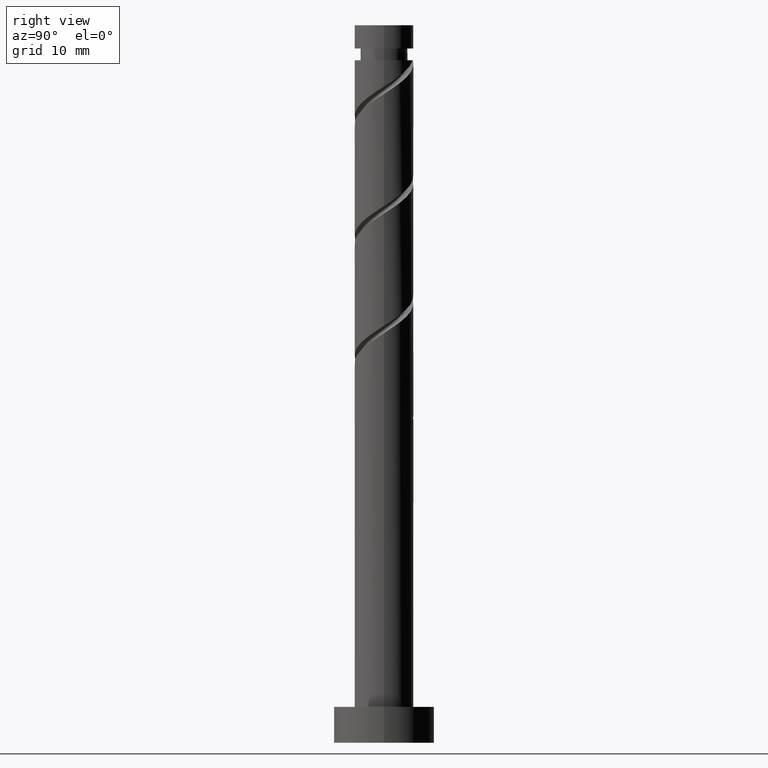
[diagram: clean part render]
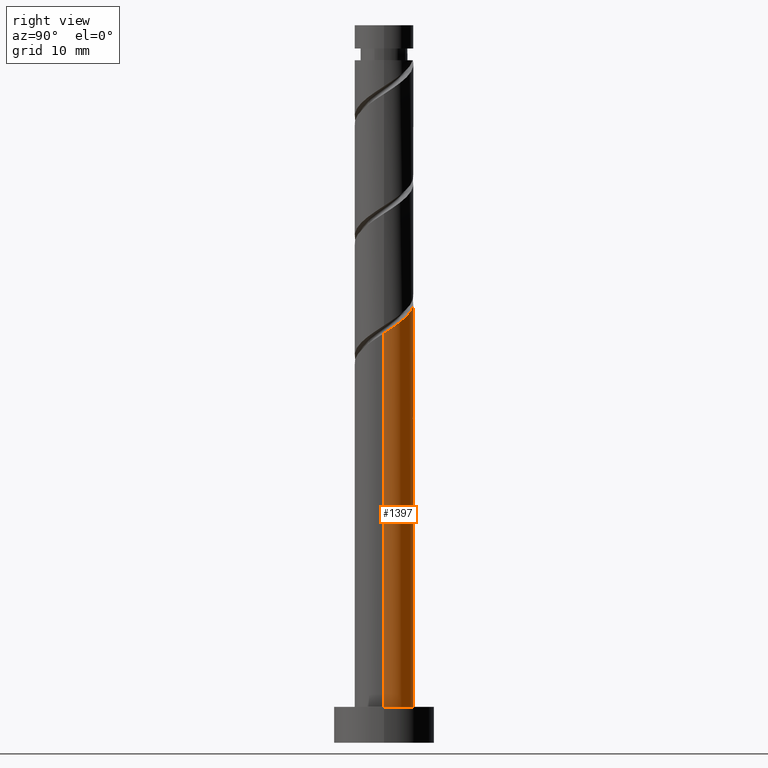
[diagram: same view with one face highlighted and labeled with its STEP entity id]
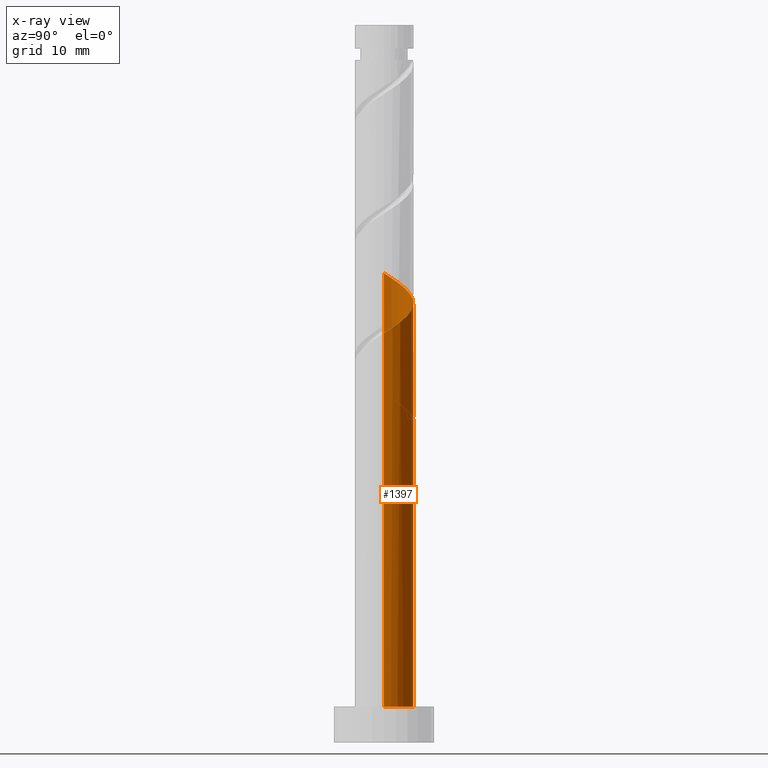
[diagram: x-ray of the same camera — body ghosted, the highlighted face saturated]
A machine part, right view. The second image highlights one B-rep face of the part: STEP entity #1397.
The next image is the same camera in x-ray: the body ghosted, the highlighted face saturated — about 0% of this face is hidden behind the body in this view.
In plain terms, the highlighted cylindrical surface (edge-blend (fillet) strip) has radius 4.1 mm, axis along (-0, -0, -1).
Its self-contained STEP definition (entity closure, byte-faithful):
#12 = CARTESIAN_POINT ( 'NONE',  ( -4.100000000000004974, 3.458370755605890229E-15, 65.42032760175501949 ) ) ;
#17 = CARTESIAN_POINT ( 'NONE',  ( -4.099999999999997868, 0.05289686476129089321, 49.78135333780017646 ) ) ;
#19 = CARTESIAN_POINT ( 'NONE',  ( 0.8158896984274287556, 4.017999999999998018, 45.11784915674378738 ) ) ;
#25 = EDGE_CURVE ( 'NONE', #1444, #927, #1307, .T. ) ;
#35 = EDGE_CURVE ( 'NONE', #927, #965, #370, .T. ) ;
#40 = VECTOR ( 'NONE', #500, 1000.000000000000000 ) ;
#44 = CARTESIAN_POINT ( 'NONE',  ( 4.079984126556929880, 0.8284761121466454048, 57.61784915674379448 ) ) ;
#48 = CARTESIAN_POINT ( 'NONE',  ( -1.524371506914042218, 3.874136632885157638, 45.58081211970674218 ) ) ;
#52 = CARTESIAN_POINT ( 'NONE',  ( 0.6075514068950473856, 4.054735661911870181, 60.85858989748452075 ) ) ;
#59 = CARTESIAN_POINT ( 'NONE',  ( -3.887634921619594230, 1.302418794475825647, 64.56229360118823024 ) ) ;
#91 = VECTOR ( 'NONE', #1470, 1000.000000000000000 ) ;
#108 = DIRECTION ( 'NONE',  ( -1.000000000000000000, 0.000000000000000000, 0.000000000000000000 ) ) ;
#120 = CARTESIAN_POINT ( 'NONE',  ( -3.071745223192158480, 2.715581205524176589, 47.89562693452156594 ) ) ;
#146 = EDGE_LOOP ( 'NONE', ( #1160, #555, #1351, #951, #706, #563, #985, #629 ) ) ;
#182 = CARTESIAN_POINT ( 'NONE',  ( -4.100000000000004974, 3.458370755605890229E-15, 48.75366093508835519 ) ) ;
#184 = DIRECTION ( 'NONE',  ( 0.000000000000000000, -0.000000000000000000, -1.000000000000000000 ) ) ;
#212 = CARTESIAN_POINT ( 'NONE',  ( 0.000000000000000000, 0.000000000000000000, 45.11784915674378738 ) ) ;
#225 = DIRECTION ( 'NONE',  ( 0.000000000000000000, 0.000000000000000000, 1.000000000000000000 ) ) ;
#226 = FACE_OUTER_BOUND ( 'NONE', #146, .T. ) ;
#252 = CARTESIAN_POINT ( 'NONE',  ( -4.079984126556922774, 0.8284761121466455158, 49.28451582341045167 ) ) ;
#261 = CARTESIAN_POINT ( 'NONE',  ( 0.1074078899408156956, 4.161863367114848167, 45.58081211970676350 ) ) ;
#271 = CARTESIAN_POINT ( 'NONE',  ( -4.099999999999998757, -2.308070331495092961E-15, 49.81537071173254105 ) ) ;
#287 = CARTESIAN_POINT ( 'NONE',  ( -2.757473422826025811, 3.119131844562241795, 63.17340471229934451 ) ) ;
#292 = CARTESIAN_POINT ( 'NONE',  ( -3.657983347971712540, 1.987913722301798858, 47.43266397155861824 ) ) ;
#301 = CARTESIAN_POINT ( 'NONE',  ( -3.207728385398868287, 2.553522783432020216, 46.96970100859563502 ) ) ;
#336 = EDGE_CURVE ( 'NONE', #1444, #338, #532, .T. ) ;
#338 = VERTEX_POINT ( 'NONE', #1299 ) ;
#353 = CARTESIAN_POINT ( 'NONE',  ( -3.815279792293906347, 1.501212878479849300, 48.82155286044747555 ) ) ;
#360 = CARTESIAN_POINT ( 'NONE',  ( -4.099999999999999645, 0.000000000000000000, 100.0000000000000000 ) ) ;
#370 = LINE ( 'NONE', #1283, #40 ) ;
#377 = CARTESIAN_POINT ( 'NONE',  ( 3.550575458030898801, 2.173949644813053972, 58.54377508266972541 ) ) ;
#401 = CARTESIAN_POINT ( 'NONE',  ( -1.524371506914042218, 3.874136632885157638, 62.24747878637342069 ) ) ;
#421 = EDGE_CURVE ( 'NONE', #1304, #662, #924, .T. ) ;
#475 = CARTESIAN_POINT ( 'NONE',  ( -4.100000000000004974, 3.458370755605890229E-15, 48.75366093508835519 ) ) ;
#483 = CARTESIAN_POINT ( 'NONE',  ( -4.098635310912194463, 0.1057761227483974137, 49.74747878637339937 ) ) ;
#500 = DIRECTION ( 'NONE',  ( -0.000000000000000000, -0.000000000000000000, -1.000000000000000000 ) ) ;
#511 = CARTESIAN_POINT ( 'NONE',  ( 3.815279792293913896, 1.501212878479849966, 58.08081211970674218 ) ) ;
#520 = CARTESIAN_POINT ( 'NONE',  ( -0.1074078899408149879, 4.161863367114853496, 61.32155286044749687 ) ) ;
#527 = CARTESIAN_POINT ( 'NONE',  ( -4.100000000000004974, 0.6685229244638775103, 64.99040808938941893 ) ) ;
#532 = LINE ( 'NONE', #1447, #1356 ) ;
#555 = ORIENTED_EDGE ( 'NONE', *, *, #336, .T. ) ;
#563 = ORIENTED_EDGE ( 'NONE', *, *, #421, .T. ) ;
#566 = CARTESIAN_POINT ( 'NONE',  ( -0.8158896984274275344, 4.018000000000006011, 45.11784915674378738 ) ) ;
#629 = ORIENTED_EDGE ( 'NONE', *, *, #35, .F. ) ;
#634 = CARTESIAN_POINT ( 'NONE',  ( 1.322510703730906290, 3.947607956708887311, 60.39562693452157305 ) ) ;
#642 = CARTESIAN_POINT ( 'NONE',  ( -3.207728385398868287, 2.553522783432020216, 63.63636767526232063 ) ) ;
#662 = VERTEX_POINT ( 'NONE', #19 ) ;
#685 = CIRCLE ( 'NONE', #896, 4.099999999999999645 ) ;
#706 = ORIENTED_EDGE ( 'NONE', *, *, #1141, .F. ) ;
#710 = CARTESIAN_POINT ( 'NONE',  ( -0.8158896984274275344, 4.018000000000006011, 45.11784915674379448 ) ) ;
#722 = EDGE_CURVE ( 'NONE', #1059, #1120, #1273, .T. ) ;
#734 = CARTESIAN_POINT ( 'NONE',  ( -3.550575458030890807, 2.173949644813053528, 48.35858989748453496 ) ) ;
#742 = CARTESIAN_POINT ( 'NONE',  ( 0.8158896984274287556, 4.017999999999998018, 45.11784915674378738 ) ) ;
#770 = EDGE_CURVE ( 'NONE', #338, #1120, #685, .T. ) ;
#819 = CARTESIAN_POINT ( 'NONE',  ( 4.100000000000004974, -3.518126621793464671E-15, 57.08699426842169800 ) ) ;
#852 = CARTESIAN_POINT ( 'NONE',  ( 4.100000000000005862, 0.05289686476128287185, 57.12101164235406969 ) ) ;
#859 = CARTESIAN_POINT ( 'NONE',  ( 1.957712846042169774, 3.602410361472095701, 59.93266397155861824 ) ) ;
#894 = DIRECTION ( 'NONE',  ( -0.000000000000000000, -0.000000000000000000, -1.000000000000000000 ) ) ;
#896 = AXIS2_PLACEMENT_3D ( 'NONE', #1248, #225, #1034 ) ;
#924 = CIRCLE ( 'NONE', #1368, 4.099999999999999645 ) ;
#927 = VERTEX_POINT ( 'NONE', #12 ) ;
#940 = CARTESIAN_POINT ( 'NONE',  ( -1.957712846042163557, 3.602410361472089484, 46.96970100859564212 ) ) ;
#951 = ORIENTED_EDGE ( 'NONE', *, *, #722, .F. ) ;
#962 = CARTESIAN_POINT ( 'NONE',  ( -4.099999999999999645, 0.000000000000000000, 5.000000000000000000 ) ) ;
#965 = VERTEX_POINT ( 'NONE', #271 ) ;
#967 =( BOUNDED_CURVE ( )  B_SPLINE_CURVE ( 2, ( #1393, #17, #483, #252, #353, #734, #120, #1285, #940, #1070, #1383, #261, #742 ),
 .UNSPECIFIED., .F., .T. ) 
 B_SPLINE_CURVE_WITH_KNOTS ( ( 3, 2, 2, 2, 2, 2, 3 ),
 ( 0.9295248053855291737, 0.9305555555555555802, 0.9444444444444444198, 0.9583333333333333703, 0.9722222222222222099, 0.9861111111111111605, 1.000000000000000000 ),
 .UNSPECIFIED. ) 
 CURVE ( )  GEOMETRIC_REPRESENTATION_ITEM ( )  RATIONAL_B_SPLINE_CURVE ( ( 0.9071930855141199235, 0.9080659294509675350, 0.9090909090909075063, 0.8952797754656419693, 0.9090909090909075063, 0.8952797754656419693, 0.9090909090909075063, 0.8952797754656419693, 0.9090909090909075063, 0.8952797754656419693, 0.9090909090909075063, 0.8952797754656419693, 0.9090909090909075063 ) ) 
 REPRESENTATION_ITEM ( '' )  );
#973 = CARTESIAN_POINT ( 'NONE',  ( 3.071745223192164698, 2.715581205524181474, 59.00673804563268732 ) ) ;
#978 = CARTESIAN_POINT ( 'NONE',  ( -2.140922464870033792, 3.496634238723700161, 46.04377508266972541 ) ) ;
#981 = CARTESIAN_POINT ( 'NONE',  ( -0.8158896984274277564, 4.018000000000006011, 61.78451582341046588 ) ) ;
#985 = ORIENTED_EDGE ( 'NONE', *, *, #1092, .F. ) ;
#986 = CARTESIAN_POINT ( 'NONE',  ( -4.100000000000004974, 0.6685229244638760671, 48.32374142272272621 ) ) ;
#990 = CARTESIAN_POINT ( 'NONE',  ( -4.100000000000004974, 3.458370755605890229E-15, 65.42032760175501949 ) ) ;
#1034 = DIRECTION ( 'NONE',  ( 1.000000000000000000, 0.000000000000000000, 0.000000000000000000 ) ) ;
#1040 = CARTESIAN_POINT ( 'NONE',  ( 0.000000000000000000, 0.000000000000000000, 100.0000000000000000 ) ) ;
#1059 = VERTEX_POINT ( 'NONE', #475 ) ;
#1070 = CARTESIAN_POINT ( 'NONE',  ( -1.322510703730900516, 3.947607956708881982, 46.50673804563268732 ) ) ;
#1076 = CARTESIAN_POINT ( 'NONE',  ( -2.757473422826025811, 3.119131844562241795, 46.50673804563267311 ) ) ;
#1080 = CARTESIAN_POINT ( 'NONE',  ( 4.100000000000004974, -3.518126621793465066E-15, 57.08699426842169800 ) ) ;
#1092 = EDGE_CURVE ( 'NONE', #965, #662, #967, .T. ) ;
#1098 = CARTESIAN_POINT ( 'NONE',  ( -3.657983347971712540, 1.987913722301798858, 64.09933063822526833 ) ) ;
#1107 = CARTESIAN_POINT ( 'NONE',  ( -3.887634921619594230, 1.302418794475825647, 47.89562693452155884 ) ) ;
#1120 = VERTEX_POINT ( 'NONE', #962 ) ;
#1140 = CYLINDRICAL_SURFACE ( 'NONE', #1483, 4.099999999999999645 ) ;
#1141 = EDGE_CURVE ( 'NONE', #1304, #1059, #1316, .T. ) ;
#1160 = ORIENTED_EDGE ( 'NONE', *, *, #25, .F. ) ;
#1181 = DIRECTION ( 'NONE',  ( -0.000000000000000000, -0.000000000000000000, -1.000000000000000000 ) ) ;
#1248 = CARTESIAN_POINT ( 'NONE',  ( 0.000000000000000000, 0.000000000000000000, 5.000000000000000000 ) ) ;
#1273 = LINE ( 'NONE', #360, #91 ) ;
#1283 = CARTESIAN_POINT ( 'NONE',  ( -4.099999999999999645, 0.000000000000000000, 100.0000000000000000 ) ) ;
#1285 = CARTESIAN_POINT ( 'NONE',  ( -2.592914988353427930, 3.257212766235300538, 47.43266397155861114 ) ) ;
#1294 = CARTESIAN_POINT ( 'NONE',  ( 4.098635310912201568, 0.1057761227483968308, 57.15488619378083257 ) ) ;
#1299 = CARTESIAN_POINT ( 'NONE',  ( 4.099999999999999645, 5.021051876504147385E-16, 5.000000000000000000 ) ) ;
#1304 = VERTEX_POINT ( 'NONE', #566 ) ;
#1307 =( BOUNDED_CURVE ( )  B_SPLINE_CURVE ( 2, ( #1080, #852, #1294, #44, #511, #377, #973, #1418, #859, #634, #52, #520, #981, #401, #1309, #287, #642, #1098, #59, #527, #990 ),
 .UNSPECIFIED., .F., .T. ) 
 B_SPLINE_CURVE_WITH_KNOTS ( ( 3, 2, 2, 2, 2, 2, 2, 2, 2, 2, 3 ),
 ( 0.1795248053855290349, 0.1805555555555555802, 0.1944444444444444198, 0.2083333333333333703, 0.2222222222222222099, 0.2361111111111111605, 0.2500000000000000000, 0.2638888888888888395, 0.2777777777777777901, 0.2916666666666666297, 0.3045248053855290071 ),
 .UNSPECIFIED. ) 
 CURVE ( )  GEOMETRIC_REPRESENTATION_ITEM ( )  RATIONAL_B_SPLINE_CURVE ( ( 0.9071930855141262517, 0.9080659294509739743, 0.9090909090909141677, 0.8952797754656487417, 0.9090909090909141677, 0.8952797754656487417, 0.9090909090909141677, 0.8952797754656487417, 0.9090909090909141677, 0.8952797754656487417, 0.9090909090909141677, 0.8952797754656487417, 0.9090909090909141677, 0.8952797754656487417, 0.9090909090909141677, 0.8952797754656487417, 0.9090909090909141677, 0.8952797754656487417, 0.9090909090909141677, 0.8963047551055889350, 0.9071930855141262517 ) ) 
 REPRESENTATION_ITEM ( '' )  );
#1309 = CARTESIAN_POINT ( 'NONE',  ( -2.140922464870033792, 3.496634238723700161, 62.71044174933638260 ) ) ;
#1316 =( BOUNDED_CURVE ( )  B_SPLINE_CURVE ( 2, ( #710, #48, #978, #1076, #301, #292, #1107, #986, #182 ),
 .UNSPECIFIED., .F., .T. ) 
 B_SPLINE_CURVE_WITH_KNOTS ( ( 3, 2, 2, 2, 3 ),
 ( 0.000000000000000000, 0.01388888888888883955, 0.02777777777777779011, 0.04166666666666662966, 0.05452480538552903488 ),
 .UNSPECIFIED. ) 
 CURVE ( )  GEOMETRIC_REPRESENTATION_ITEM ( )  RATIONAL_B_SPLINE_CURVE ( ( 0.9090909090909141677, 0.8952797754656487417, 0.9090909090909141677, 0.8952797754656487417, 0.9090909090909141677, 0.8952797754656487417, 0.9090909090909141677, 0.8963047551055889350, 0.9071930855141262517 ) ) 
 REPRESENTATION_ITEM ( '' )  );
#1351 = ORIENTED_EDGE ( 'NONE', *, *, #770, .T. ) ;
#1356 = VECTOR ( 'NONE', #1181, 1000.000000000000000 ) ;
#1368 = AXIS2_PLACEMENT_3D ( 'NONE', #212, #184, #1437 ) ;
#1383 = CARTESIAN_POINT ( 'NONE',  ( -0.6075514068950421676, 4.054735661911863964, 46.04377508266971120 ) ) ;
#1393 = CARTESIAN_POINT ( 'NONE',  ( -4.099999999999998757, -2.308070331495092961E-15, 49.81537071173254105 ) ) ;
#1397 = ADVANCED_FACE ( 'NONE', ( #226 ), #1140, .T. ) ;
#1418 = CARTESIAN_POINT ( 'NONE',  ( 2.592914988353433259, 3.257212766235304979, 59.46970100859562791 ) ) ;
#1437 = DIRECTION ( 'NONE',  ( -1.000000000000000000, 0.000000000000000000, 0.000000000000000000 ) ) ;
#1444 = VERTEX_POINT ( 'NONE', #819 ) ;
#1447 = CARTESIAN_POINT ( 'NONE',  ( 4.099999999999999645, 5.021051876504147385E-16, 100.0000000000000000 ) ) ;
#1470 = DIRECTION ( 'NONE',  ( -0.000000000000000000, -0.000000000000000000, -1.000000000000000000 ) ) ;
#1483 = AXIS2_PLACEMENT_3D ( 'NONE', #1040, #894, #108 ) ;